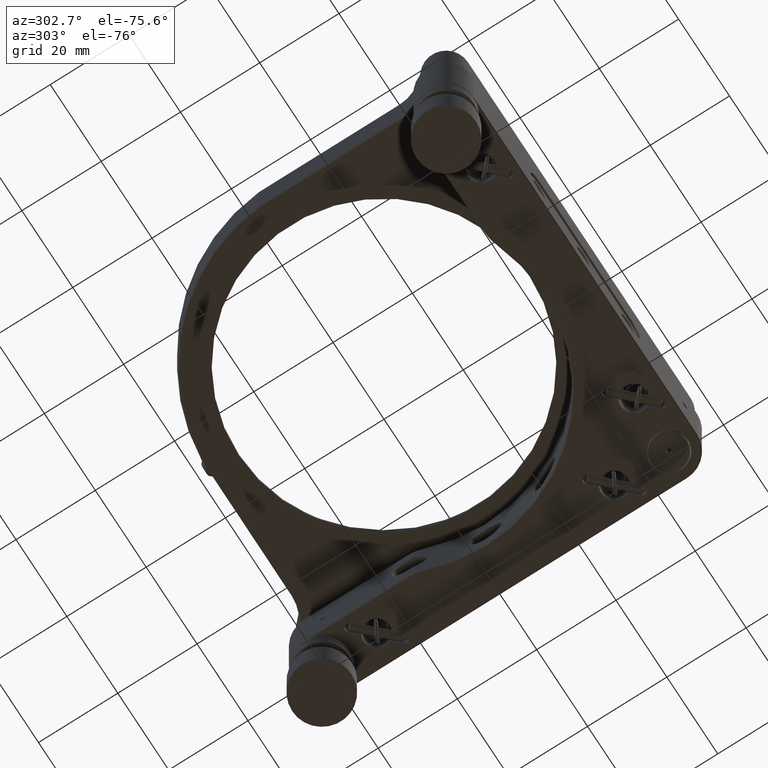
[diagram: clean part render]
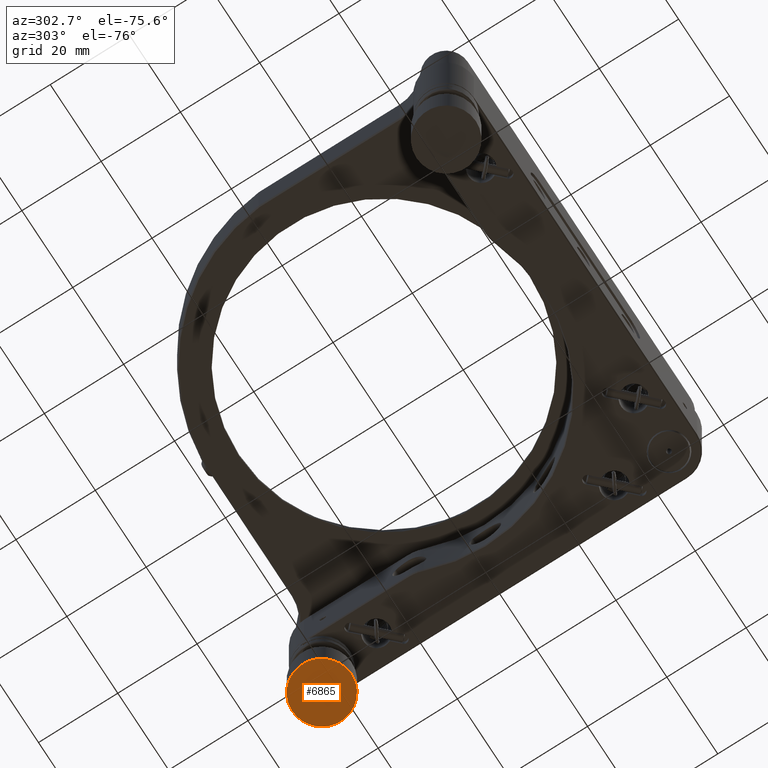
[diagram: same view with one face highlighted and labeled with its STEP entity id]
A machine part, auxiliary view. The second image highlights one B-rep face of the part: STEP entity #6865.
In plain terms, the highlighted planar face has unit normal (-0, 0, -1).
Its self-contained STEP definition (entity closure, byte-faithful):
#750 = ORIENTED_EDGE ( 'NONE', *, *, #22155, .T. ) ;
#906 = AXIS2_PLACEMENT_3D ( 'NONE', #14308, #4150, #18708 ) ;
#1341 = CARTESIAN_POINT ( 'NONE',  ( 43.79999999999996163, 51.30000000000016769, -30.50814575050742050 ) ) ;
#4150 = DIRECTION ( 'NONE',  ( -1.398070451895379703E-16, 3.293875182991912234E-15, -1.000000000000000000 ) ) ;
#4667 = PLANE ( 'NONE',  #4874 ) ;
#4874 = AXIS2_PLACEMENT_3D ( 'NONE', #14962, #12954, #20716 ) ;
#6865 = ADVANCED_FACE ( 'NONE', ( #12554 ), #4667, .T. ) ;
#12554 = FACE_OUTER_BOUND ( 'NONE', #25001, .T. ) ;
#12954 = DIRECTION ( 'NONE',  ( -1.398070451895379703E-16, 3.293875182991912234E-15, -1.000000000000000000 ) ) ;
#14308 = CARTESIAN_POINT ( 'NONE',  ( 43.79999999999996163, 43.80000000000016058, -30.50814575050744537 ) ) ;
#14962 = CARTESIAN_POINT ( 'NONE',  ( 43.79999999999996163, 43.80000000000016058, -30.50814575050744537 ) ) ;
#18708 = DIRECTION ( 'NONE',  ( 0.000000000000000000, 1.000000000000000000, 3.238150488490036886E-15 ) ) ;
#20031 = VERTEX_POINT ( 'NONE', #1341 ) ;
#20716 = DIRECTION ( 'NONE',  ( 0.000000000000000000, 1.000000000000000000, 3.293875182991912234E-15 ) ) ;
#22155 = EDGE_CURVE ( 'NONE', #20031, #20031, #23951, .T. ) ;
#23951 = CIRCLE ( 'NONE', #906, 7.500000000000007105 ) ;
#25001 = EDGE_LOOP ( 'NONE', ( #750 ) ) ;